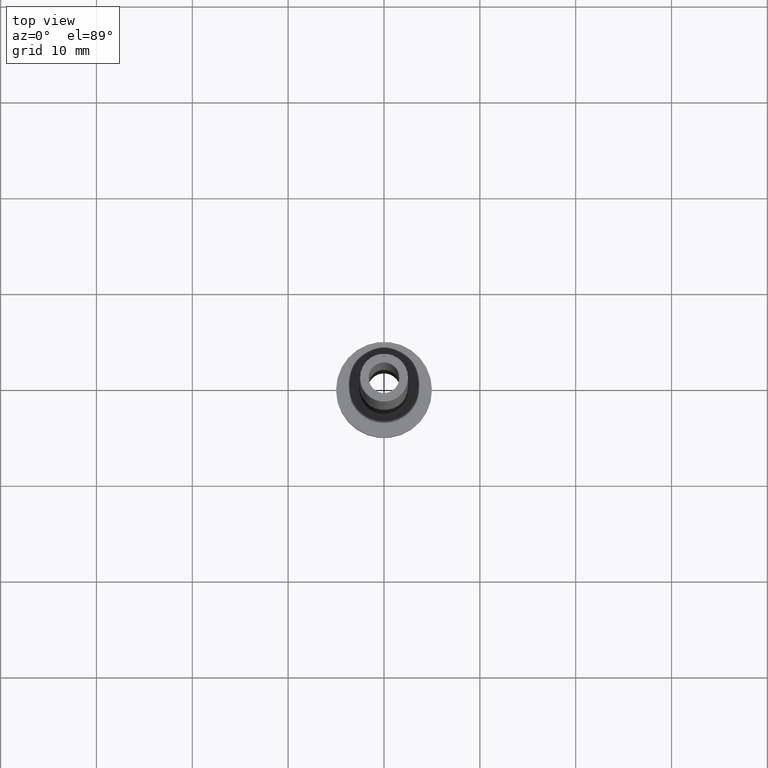
[diagram: clean part render]
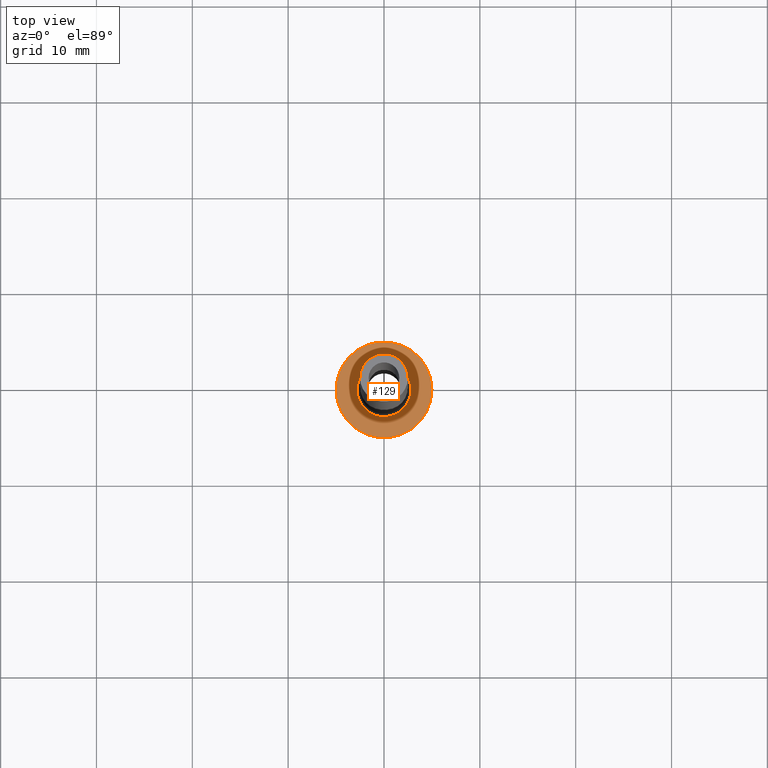
[diagram: same view with one face highlighted and labeled with its STEP entity id]
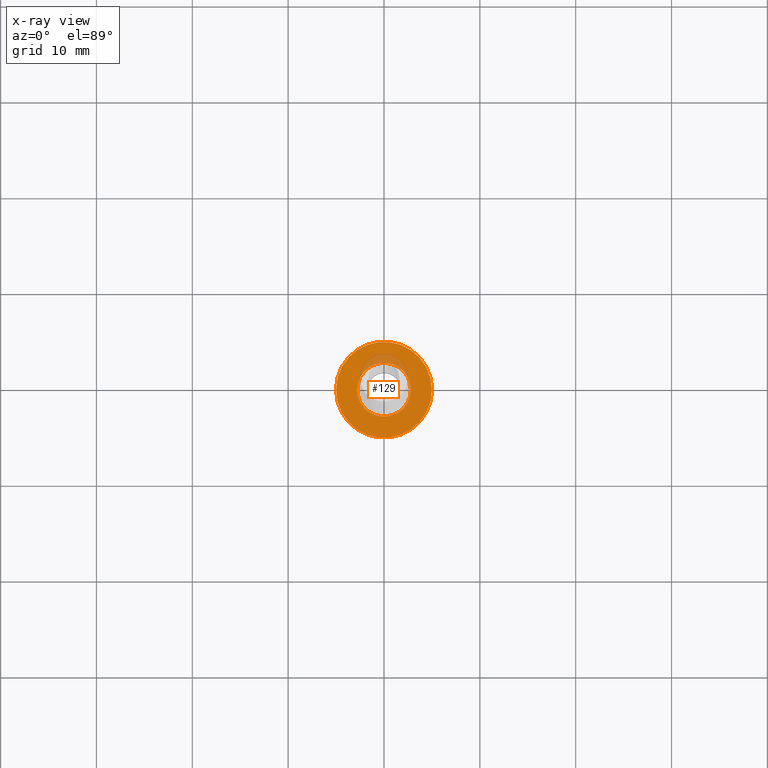
[diagram: x-ray of the same camera — body ghosted, the highlighted face saturated]
A machine part, top view. The second image highlights one B-rep face of the part: STEP entity #129.
The next image is the same camera in x-ray: the body ghosted, the highlighted face saturated — about 8% of this face is hidden behind the body in this view.
In plain terms, the highlighted planar face has unit normal (0, 0, 1).
Its self-contained STEP definition (entity closure, byte-faithful):
#3 = EDGE_CURVE ( 'NONE', #45, #334, #375, .T. ) ;
#5 = DIRECTION ( 'NONE',  ( 1.000000000000000000, 0.000000000000000000, 0.000000000000000000 ) ) ;
#10 = DIRECTION ( 'NONE',  ( 1.000000000000000000, 0.000000000000000000, 0.000000000000000000 ) ) ;
#45 = VERTEX_POINT ( 'NONE', #398 ) ;
#53 = CIRCLE ( 'NONE', #434, 2.799999999999999822 ) ;
#59 = DIRECTION ( 'NONE',  ( 1.000000000000000000, 0.000000000000000000, 0.000000000000000000 ) ) ;
#81 = ORIENTED_EDGE ( 'NONE', *, *, #193, .T. ) ;
#82 = EDGE_LOOP ( 'NONE', ( #202, #81 ) ) ;
#91 = CARTESIAN_POINT ( 'NONE',  ( 0.000000000000000000, 0.000000000000000000, 3.000000000000000000 ) ) ;
#101 = CARTESIAN_POINT ( 'NONE',  ( 0.000000000000000000, 0.000000000000000000, 3.000000000000000000 ) ) ;
#105 = CARTESIAN_POINT ( 'NONE',  ( -2.799999999999999822, 3.429011037612589276E-16, 2.999999999999998668 ) ) ;
#121 = DIRECTION ( 'NONE',  ( -0.000000000000000000, -0.000000000000000000, -1.000000000000000000 ) ) ;
#127 = DIRECTION ( 'NONE',  ( 0.000000000000000000, 0.000000000000000000, 1.000000000000000000 ) ) ;
#129 = ADVANCED_FACE ( 'NONE', ( #384, #413 ), #234, .T. ) ;
#134 = CARTESIAN_POINT ( 'NONE',  ( 5.000000000000000000, 6.123233995736766282E-16, 3.000000000000000000 ) ) ;
#157 = CIRCLE ( 'NONE', #353, 2.799999999999999822 ) ;
#177 = CARTESIAN_POINT ( 'NONE',  ( 0.000000000000000000, 0.000000000000000000, 3.000000000000000000 ) ) ;
#192 = DIRECTION ( 'NONE',  ( 0.000000000000000000, 0.000000000000000000, 1.000000000000000000 ) ) ;
#193 = EDGE_CURVE ( 'NONE', #400, #367, #157, .T. ) ;
#202 = ORIENTED_EDGE ( 'NONE', *, *, #342, .T. ) ;
#206 = DIRECTION ( 'NONE',  ( 1.000000000000000000, 0.000000000000000000, -0.000000000000000000 ) ) ;
#216 = CARTESIAN_POINT ( 'NONE',  ( 2.799999999999999822, 0.000000000000000000, 2.999999999999998668 ) ) ;
#217 = AXIS2_PLACEMENT_3D ( 'NONE', #177, #324, #5 ) ;
#232 = EDGE_LOOP ( 'NONE', ( #414, #317 ) ) ;
#234 = PLANE ( 'NONE',  #455 ) ;
#280 = DIRECTION ( 'NONE',  ( -0.000000000000000000, -0.000000000000000000, -1.000000000000000000 ) ) ;
#317 = ORIENTED_EDGE ( 'NONE', *, *, #428, .T. ) ;
#320 = AXIS2_PLACEMENT_3D ( 'NONE', #435, #192, #10 ) ;
#324 = DIRECTION ( 'NONE',  ( 0.000000000000000000, 0.000000000000000000, 1.000000000000000000 ) ) ;
#334 = VERTEX_POINT ( 'NONE', #134 ) ;
#342 = EDGE_CURVE ( 'NONE', #367, #400, #53, .T. ) ;
#353 = AXIS2_PLACEMENT_3D ( 'NONE', #101, #121, #59 ) ;
#354 = CARTESIAN_POINT ( 'NONE',  ( 0.000000000000000000, 0.000000000000000000, 3.000000000000000000 ) ) ;
#357 = CIRCLE ( 'NONE', #217, 5.000000000000000000 ) ;
#367 = VERTEX_POINT ( 'NONE', #216 ) ;
#375 = CIRCLE ( 'NONE', #320, 5.000000000000000000 ) ;
#384 = FACE_BOUND ( 'NONE', #82, .T. ) ;
#398 = CARTESIAN_POINT ( 'NONE',  ( -5.000000000000000000, 0.000000000000000000, 3.000000000000000000 ) ) ;
#400 = VERTEX_POINT ( 'NONE', #105 ) ;
#413 = FACE_OUTER_BOUND ( 'NONE', #232, .T. ) ;
#414 = ORIENTED_EDGE ( 'NONE', *, *, #3, .T. ) ;
#427 = DIRECTION ( 'NONE',  ( 1.000000000000000000, 0.000000000000000000, 0.000000000000000000 ) ) ;
#428 = EDGE_CURVE ( 'NONE', #334, #45, #357, .T. ) ;
#434 = AXIS2_PLACEMENT_3D ( 'NONE', #354, #280, #427 ) ;
#435 = CARTESIAN_POINT ( 'NONE',  ( 0.000000000000000000, 0.000000000000000000, 3.000000000000000000 ) ) ;
#455 = AXIS2_PLACEMENT_3D ( 'NONE', #91, #127, #206 ) ;